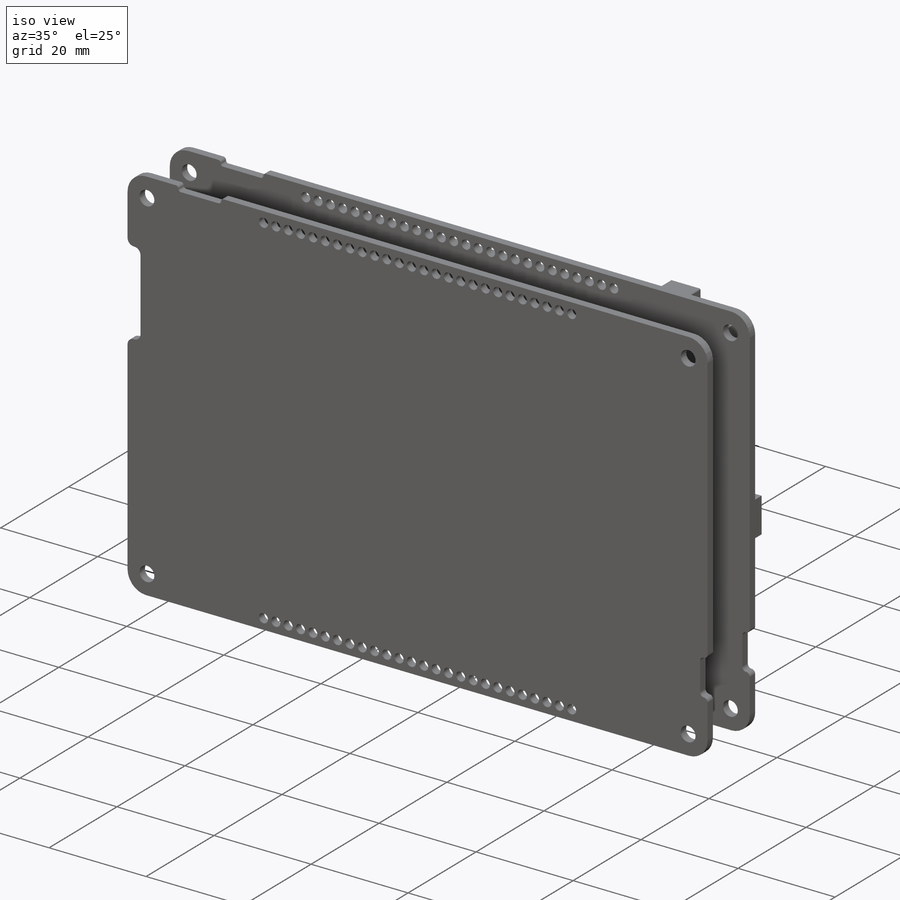
[diagram: iso view]
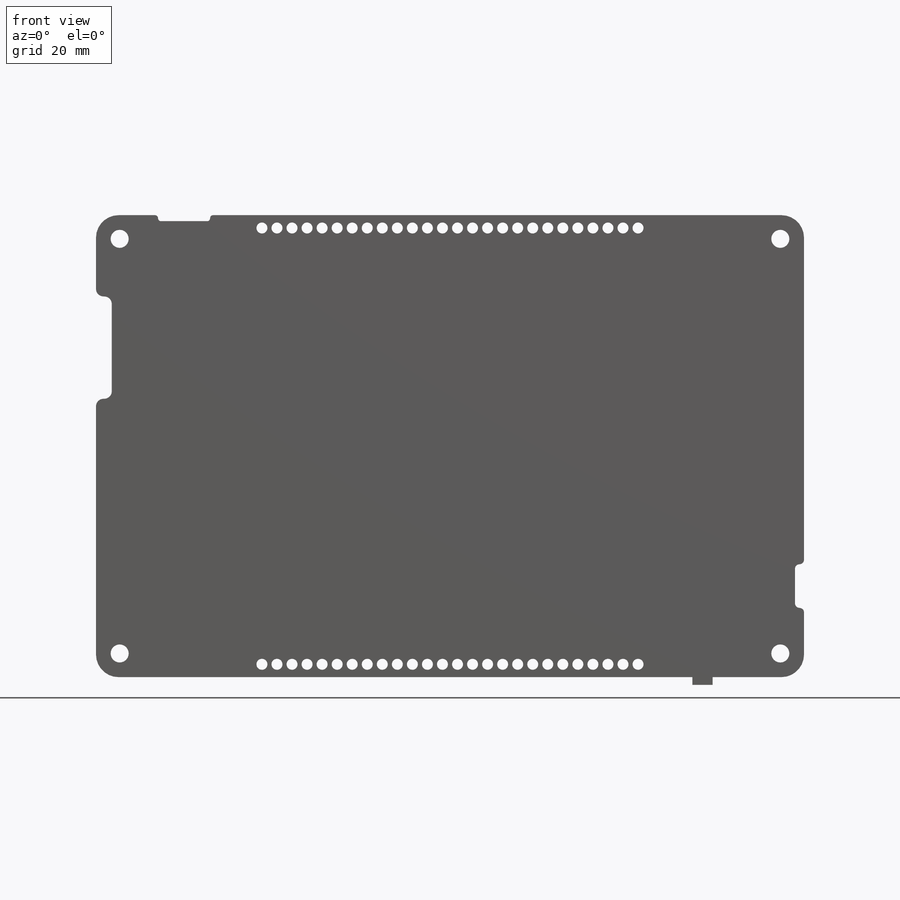
[diagram: front view]
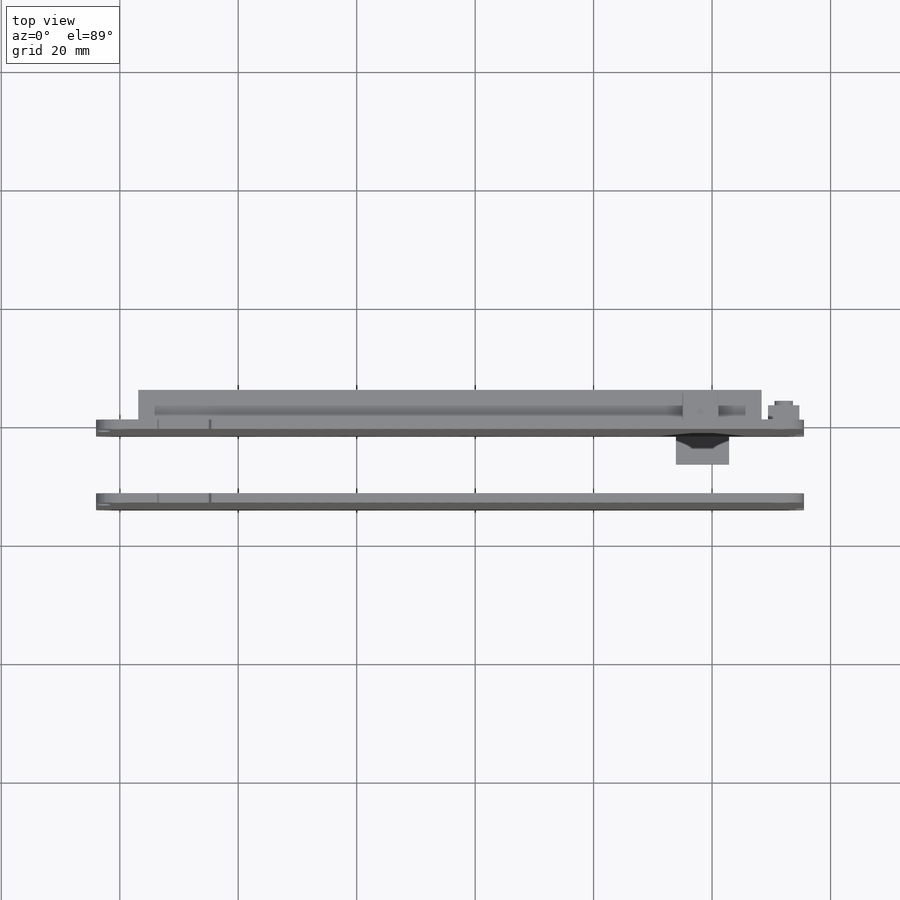
[diagram: top view]
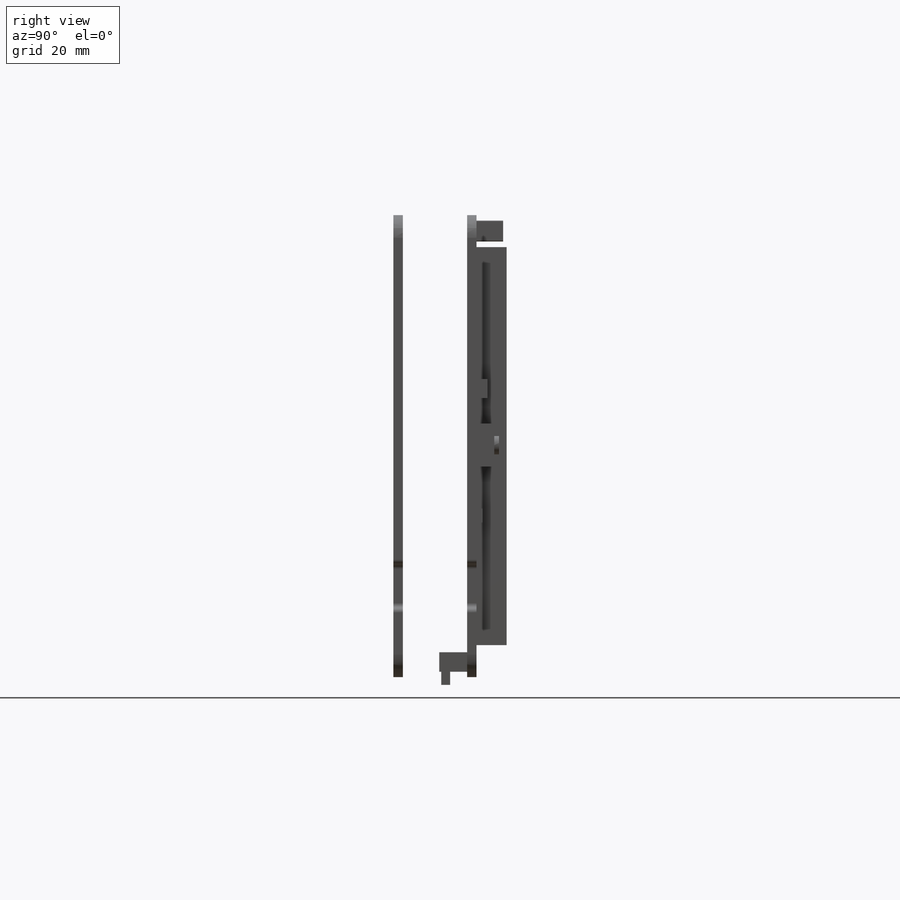
[diagram: right view]
SOLIDWORKS PART (.sldprt)
format: sldprt  version: not decoded by parser v0  size: 79,305,728 bytes
history: native  units: mm
features: sketch x12, extrude x10, material x1, pattern_linear x1, cut_extrude x1 + 2 further entries (+13 scaffold rows collapsed)
feature tree (40):
  scaffold x13  (default folders/planes/origin — collapsed)
  material  "Material <not specified>"
  "Axis Y"
  "Axis Z"
  sketch  "Model"
  sketch  "Sketch1"  dims[D1=3.048mm D2=2.54mm]
  extrude  "Boss-Extrude1"  Depth=1.5875mm
  pattern_linear  "LPattern1"  Count1=2 Count2=1 Spacing1=12.4364mm Spacing2=2.54mm
  sketch  "Sketch2"
  extrude  "Boss-Extrude2"  Depth=5.08mm
  sketch  "Sketch3"  dims[D1=3.5mm D2=2.75mm D3=3.5mm D4=7.0mm]
  cut_extrude  "Cut-Extrude1"  Depth=0.508mm
  sketch  "Sketch4"
  extrude  "Boss-Extrude3"  Depth=1.81mm
  sketch  "Sketch5"
  extrude  "Boss-Extrude4"  Depth=3mm
  sketch  "Sketch6"
  extrude  "Boss-Extrude5"  Depth=0.8mm
  sketch  "Sketch7"
  extrude  "Boss-Extrude6"  Depth=1mm
  sketch  "Sketch8"  dims[D1=0.0mm]
  extrude  "Boss-Extrude7"  Depth=4.5mm
  sketch  "Sketch9"
  extrude  "Boss-Extrude8"  Depth=4.69mm
  sketch  "Sketch10"  dims[D1=4.32mm D2=1.54mm D3=0.32mm D4=1.5mm]
  extrude  "Boss-Extrude9"  Depth=2.2mm
  sketch  "Sketch11"
  extrude  "Boss-Extrude10"  [1 undecoded]
decode coverage: 15 of 24 modeling features carry decoded parameters; 2 rows unclassified (native names shown)
note: 1 parameter value undecoded
note: suppression state not decoded; provenance and decode notes live in map.json
